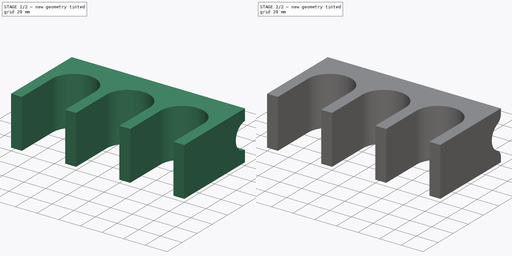
[diagram: build sequence overview — one tinted view per stage of 2, left to right]
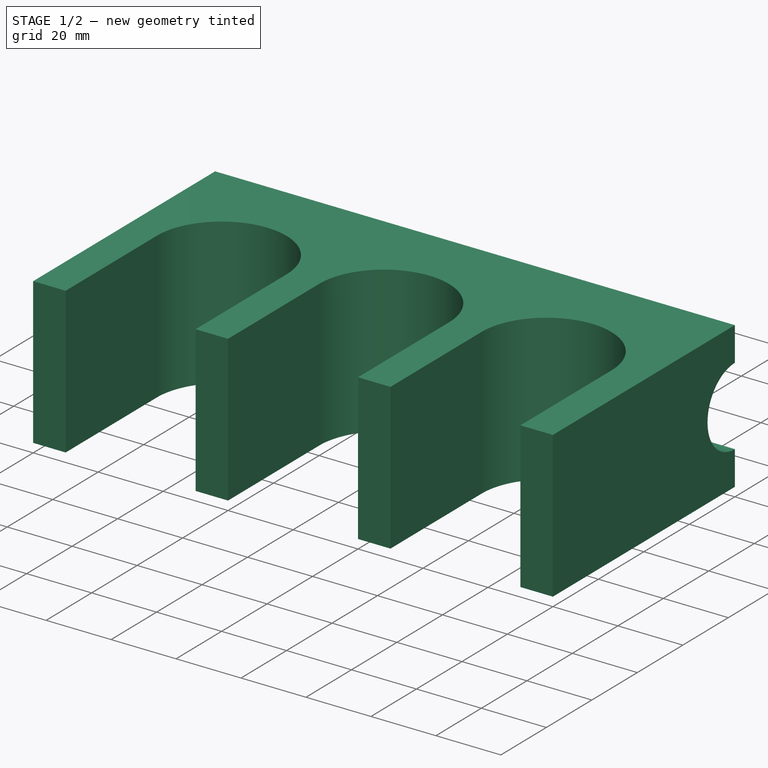
[diagram: stage 1 of 2 — iso view after this stage's code; geometry added in this stage tinted green]
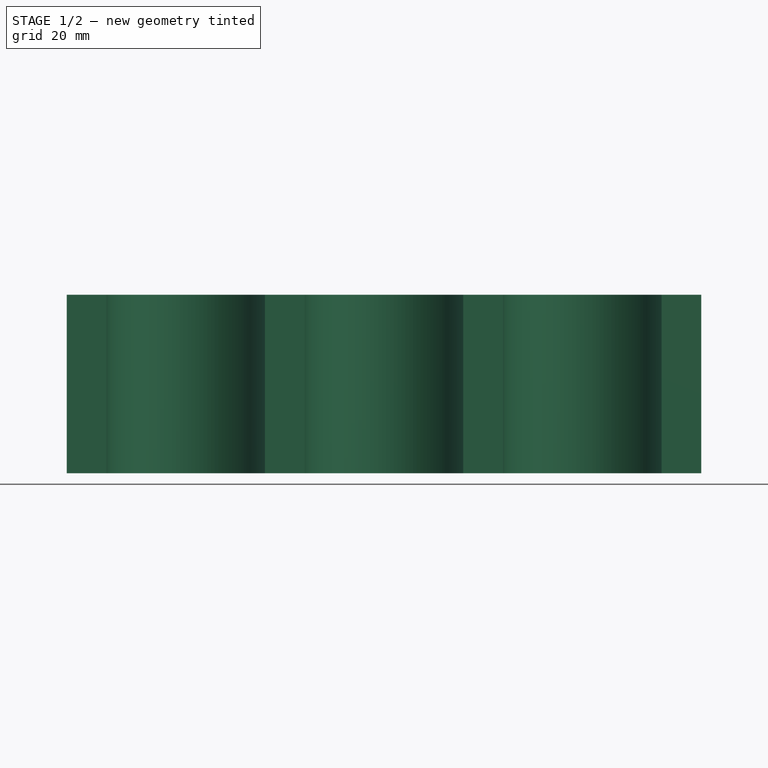
[diagram: stage 1 of 2 — front view after this stage's code; geometry added in this stage tinted green]
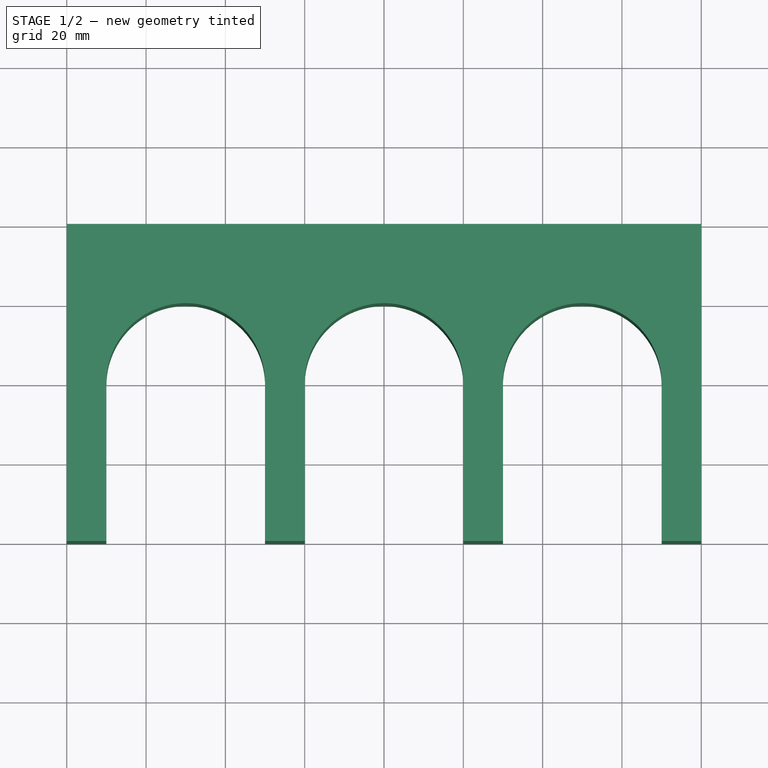
[diagram: stage 1 of 2 — top view after this stage's code; geometry added in this stage tinted green]
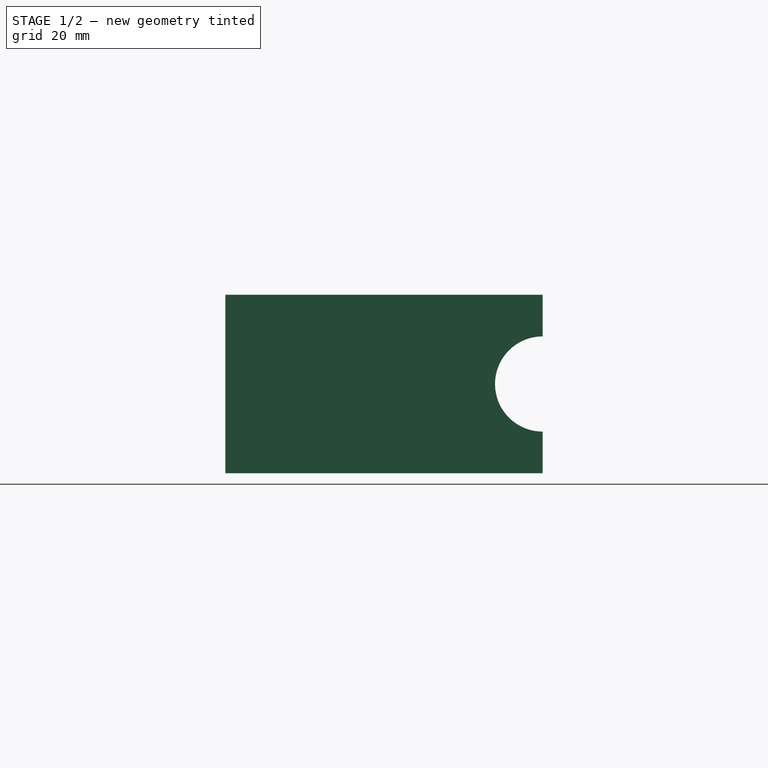
[diagram: stage 1 of 2 — right view after this stage's code; geometry added in this stage tinted green]
FCSTD DOCUMENT  (FreeCAD 0.16R6707 (Git))
Label: Acueducto
License: CreativeCommons Attribution-ShareAlike
LicenseURL: http://creativecommons.org/licenses/by-sa/4.0/
objects: Sketcher::SketchObject×2, PartDesign::Pad×1, PartDesign::Pocket×1, PartDesign::Fillet×1
note: 7 computed .brp shape members not serialized (recipe doc carries the construction recipe); baked Part::Feature solids carry a one-line shape summary decoded from their .brp

FEATURE [Sketcher::SketchObject] Sketch  label="BCT_Acueducto"
  sketch-geometry (17):
    g0: ArcOfCircle CenterX=-50 CenterY=0 CenterZ=0 NormalX=0 NormalY=0 NormalZ=1 Radius=20 StartAngle=0 EndAngle=3.14159
    g1: ArcOfCircle CenterX=0 CenterY=0 CenterZ=0 NormalX=0 NormalY=0 NormalZ=1 Radius=20 StartAngle=6.28318 EndAngle=9.42478
    g2: ArcOfCircle CenterX=50 CenterY=0 CenterZ=0 NormalX=0 NormalY=0 NormalZ=1 Radius=20 StartAngle=0 EndAngle=3.14159
    g3: LineSegment StartX=-70 StartY=0 StartZ=0 EndX=-70 EndY=-40 EndZ=0
    g4: LineSegment StartX=-30 StartY=0 StartZ=0 EndX=-30 EndY=-40 EndZ=0
    g5: LineSegment StartX=-20 StartY=0 StartZ=0 EndX=-20 EndY=-40 EndZ=0
    g6: LineSegment StartX=20 StartY=-4.48888e-05 StartZ=0 EndX=20 EndY=-40 EndZ=0
    g7: LineSegment StartX=30 StartY=-4.48888e-05 StartZ=0 EndX=30 EndY=-40 EndZ=0
    g8: LineSegment StartX=70 StartY=0 StartZ=0 EndX=70 EndY=-40 EndZ=0
    g9: LineSegment StartX=-30 StartY=-40 StartZ=0 EndX=-20 EndY=-40 EndZ=0
    g10: LineSegment StartX=20 StartY=-40 StartZ=0 EndX=30 EndY=-40 EndZ=0
    g11: LineSegment StartX=70 StartY=-40 StartZ=0 EndX=80 EndY=-40 EndZ=0
    g12: LineSegment StartX=-70 StartY=-40 StartZ=0 EndX=-80 EndY=-40 EndZ=0
    g13: LineSegment [constr] StartX=-97.4149 StartY=0 StartZ=0 EndX=128.152 EndY=0 EndZ=0
    g14: LineSegment StartX=80 StartY=-40 StartZ=0 EndX=80 EndY=40 EndZ=0
    g15: LineSegment StartX=80 StartY=40 StartZ=0 EndX=-80 EndY=40 EndZ=0
    g16: LineSegment StartX=-80 StartY=40 StartZ=0 EndX=-80 EndY=-40 EndZ=0
  constraints (52):
    c: DistanceX(g0,g1) = 50
    c: Equal(g0,g1)
    c: Equal(g1,g2)
    c: Radius(g0) = 20
    c: Vertical(g7)
    c: Parallel(g6,g5)
    c: Parallel(g4,g3)
    c: Tangent(g5,g1,g5) = -1.5708
    c: Coincident(g4,g9)
    c: Coincident(g5,g9)
    c: Coincident(g6,g10)
    c: Coincident(g7,g10)
    c: Horizontal(g12)
    c: Coincident(g3,g12)
    c: Coincident(g8,g11)
    c: Equal(g3,g4)
    c: Equal(g4,g5)
    c: Equal(g5,g6)
    c: Equal(g6,g7)
    c: Equal(g7,g8)
    c: Horizontal(g13)
    c: PointOnObject(g1,g13)
    c: PointOnObject(g2,g13)
    c: PointOnObject(g0,g13)
    c: Perpendicular(g13,g3)
    c: Parallel(g9,g10)
    c: Parallel(g10,g11)
    c: Parallel(g11,g13)
    c: DistanceX(g12,g12) = 10
    c: Equal(g10,g9)
    c: Equal(g9,g11)
    c: Coincident(g1,g-1)
    c: Vertical(g14)
    c: Coincident(g14,g15)
    c: Coincident(g15,g16)
    c: Coincident(g12,g16)
    c: Coincident(g11,g14)
    c: Parallel(g15,g9)
    c: Perpendicular(g15,g16)
    c: Equal(g16,g14)
    c: DistanceY(g14,g14) = 80
    c: Coincident(g0,g4)
    c: Coincident(g0,g3)
    c: Coincident(g1,g6)
    c: Coincident(g1,g5)
    c: Coincident(g2,g8)
    c: Coincident(g2,g7)
    c: DistanceX(g-1,g2) = 50
    c: Parallel(g4,g5)
    c: Parallel(g7,g8)
    c: PointOnObject(g0,g13)
    c: DistanceY(g3,g3) = 40
FEATURE [PartDesign::Pad] Pad  label="Acueducto"
  Length = 45
  Length2 = 100
  Sketch = -> Sketch
  Type = 0
FEATURE [Sketcher::SketchObject] Sketch001  label="BCT_Vaciado"
  Placement = pos=(-80,0,0) rot=(0.57735,-0.57735,-0.57735;2.0944rad)
  Support = -> Pad [Face5]
  sketch-geometry (1):
    g0: Circle CenterX=-40 CenterY=22.5 CenterZ=0 NormalX=0 NormalY=0 NormalZ=1 Radius=12
  constraints (3):
    c: DistanceX(g0,g-1) = 40
    c: DistanceY(g-1,g0) = 22.5
    c: Radius(g0) = 12
FEATURE [PartDesign::Pocket] Pocket  label="CAnal"
  Length = 5
  Sketch = -> Sketch001
  Type = 1
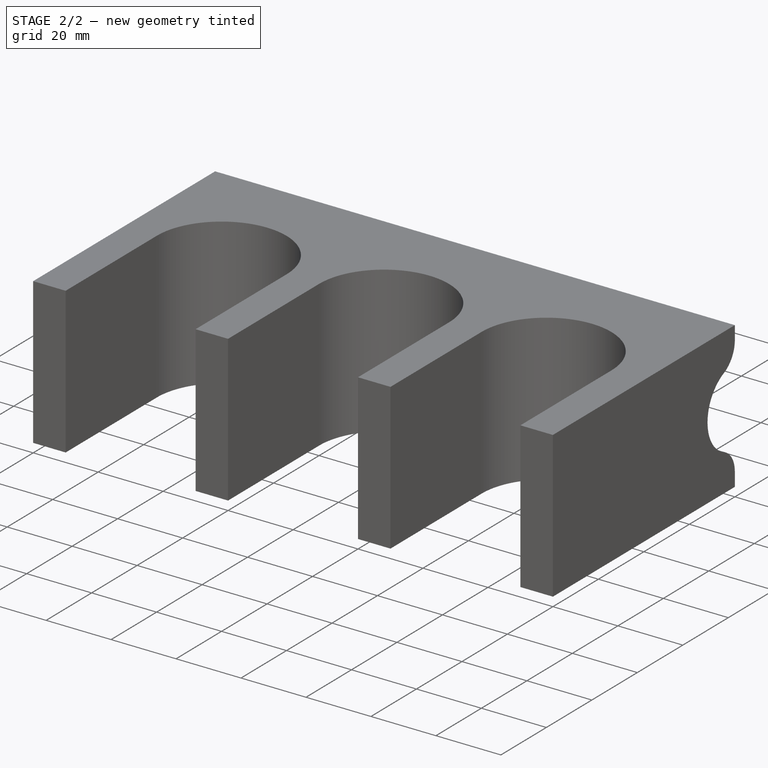
[diagram: stage 2 of 2 — iso view after this stage's code; geometry added in this stage tinted green]
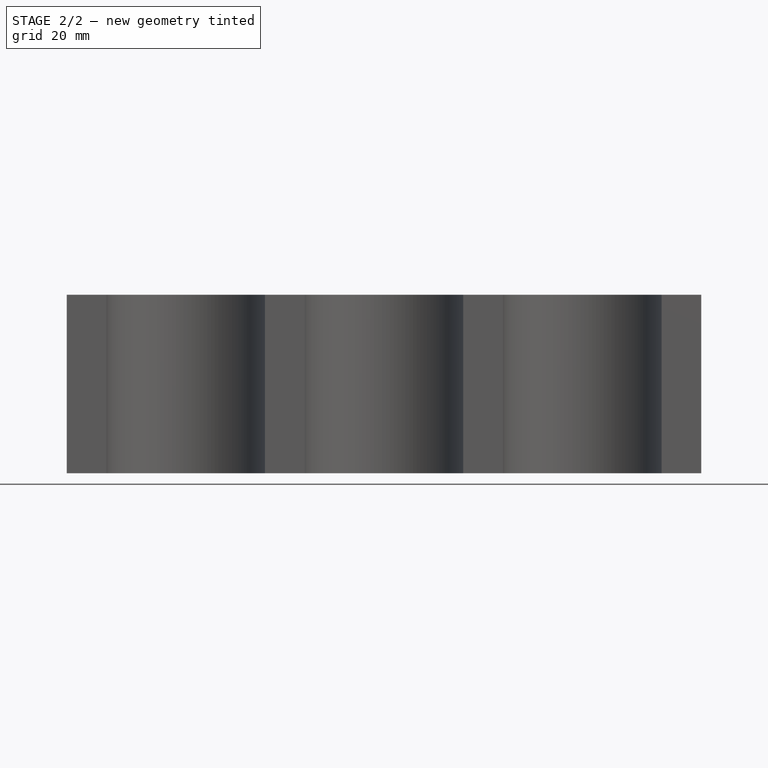
[diagram: stage 2 of 2 — front view after this stage's code; geometry added in this stage tinted green]
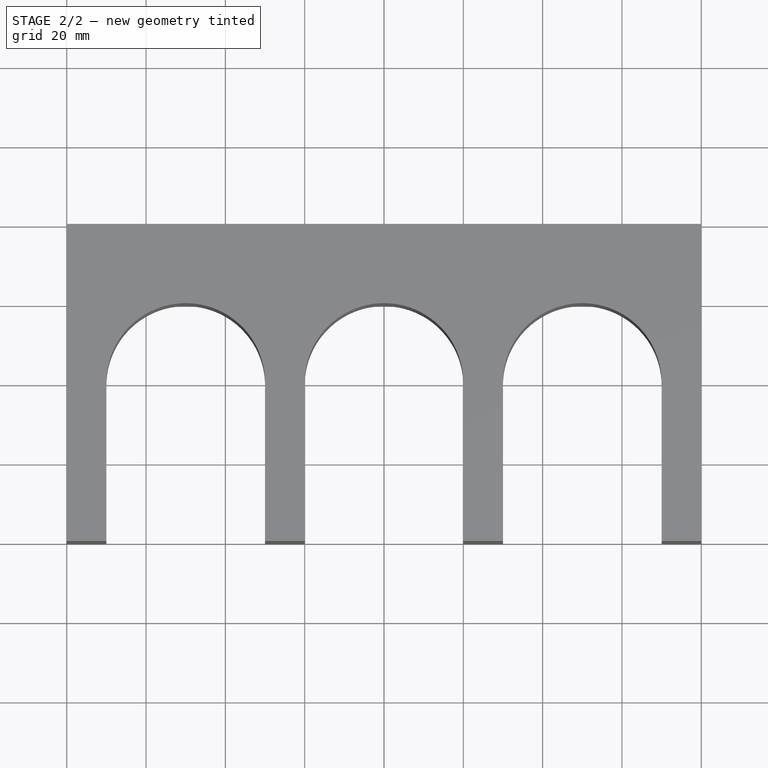
[diagram: stage 2 of 2 — top view after this stage's code; geometry added in this stage tinted green]
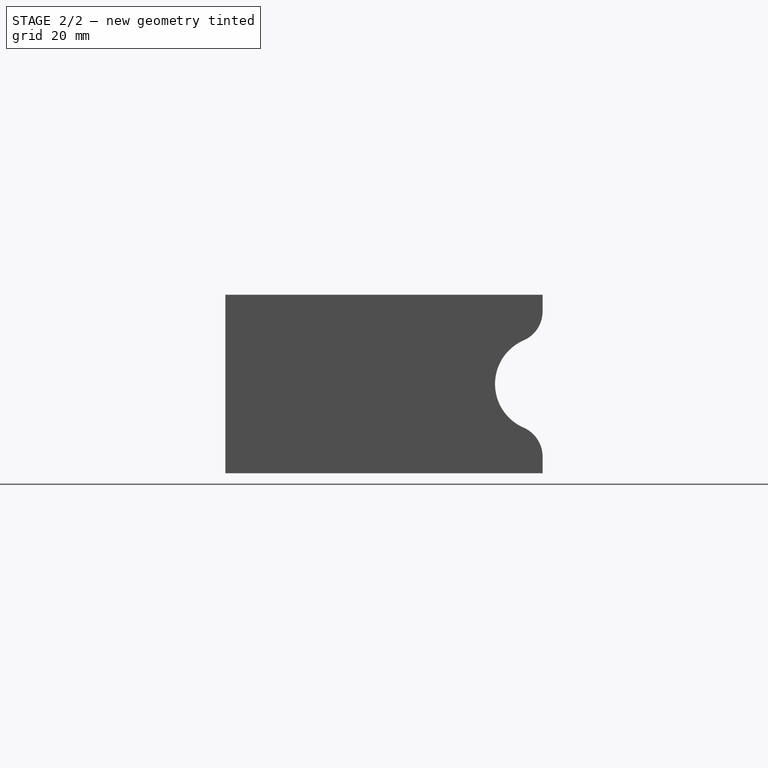
[diagram: stage 2 of 2 — right view after this stage's code; geometry added in this stage tinted green]
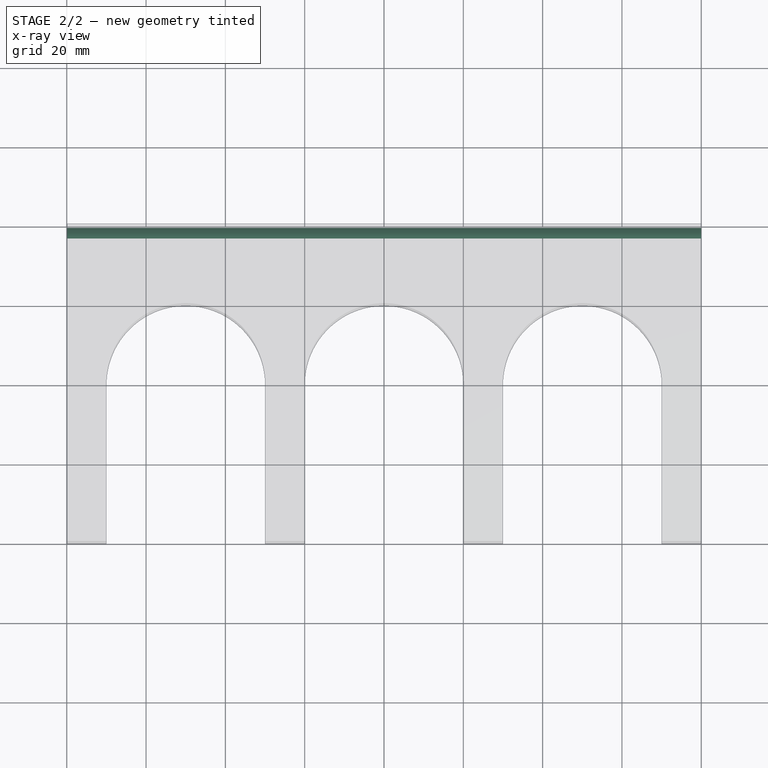
[diagram: stage 2 of 2 — x-ray composite at the top view; earlier geometry ghosted, this stage's added geometry solid]
FEATURE [PartDesign::Fillet] Fillet  label="Redondeo"
  Base = -> Pocket [Edge56,Edge44]
  Radius = 8
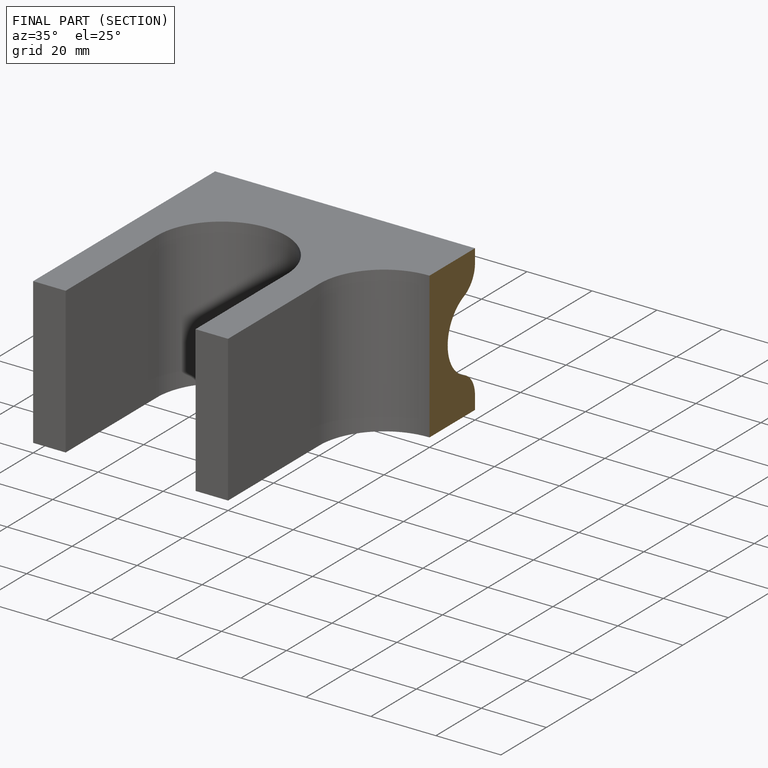
[diagram: finished part — half-section view (interior)]
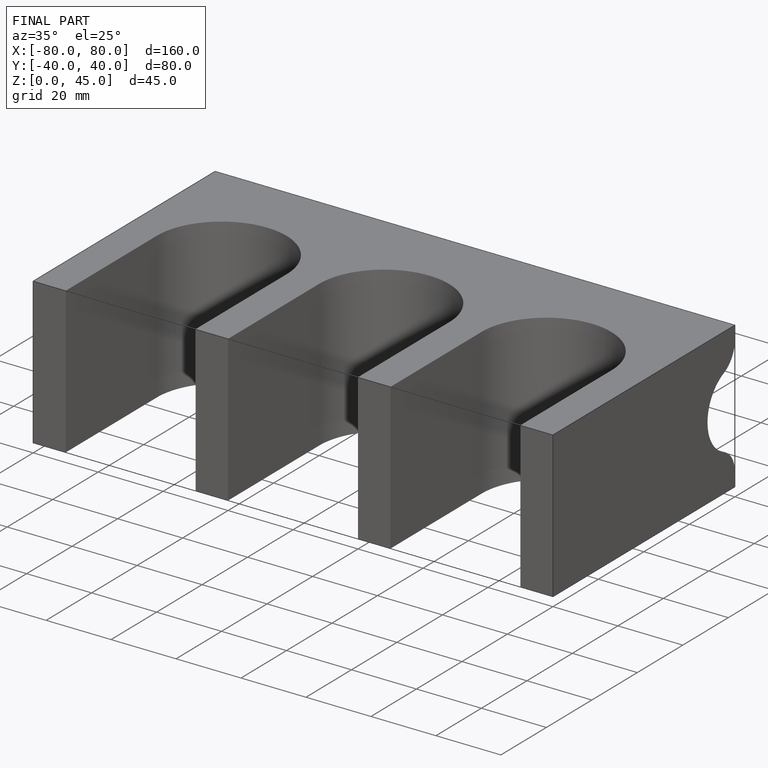
[diagram: finished part — iso view with bounding-box wireframe]
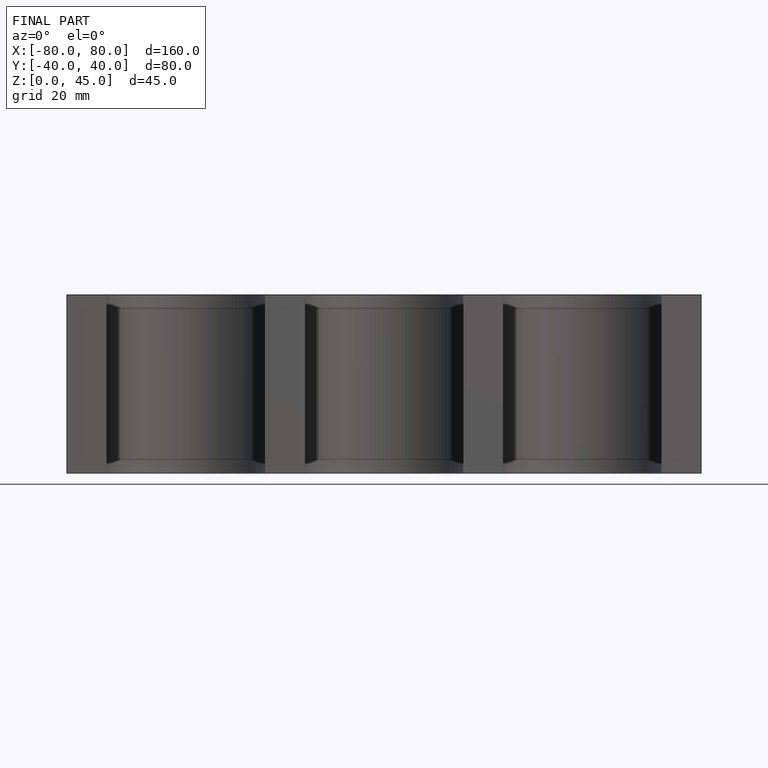
[diagram: finished part — front view with bounding-box wireframe]
